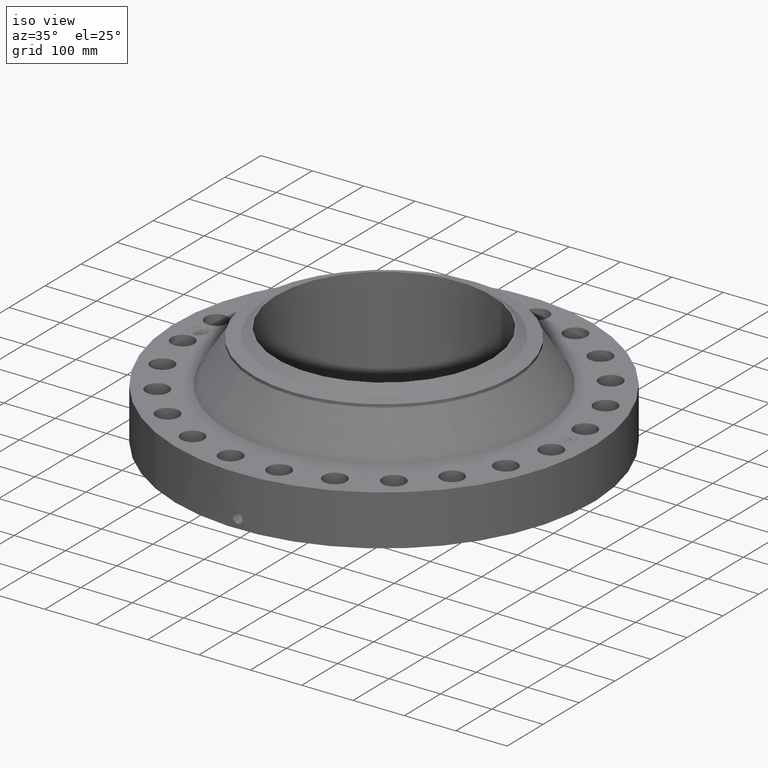
[diagram: clean part render]
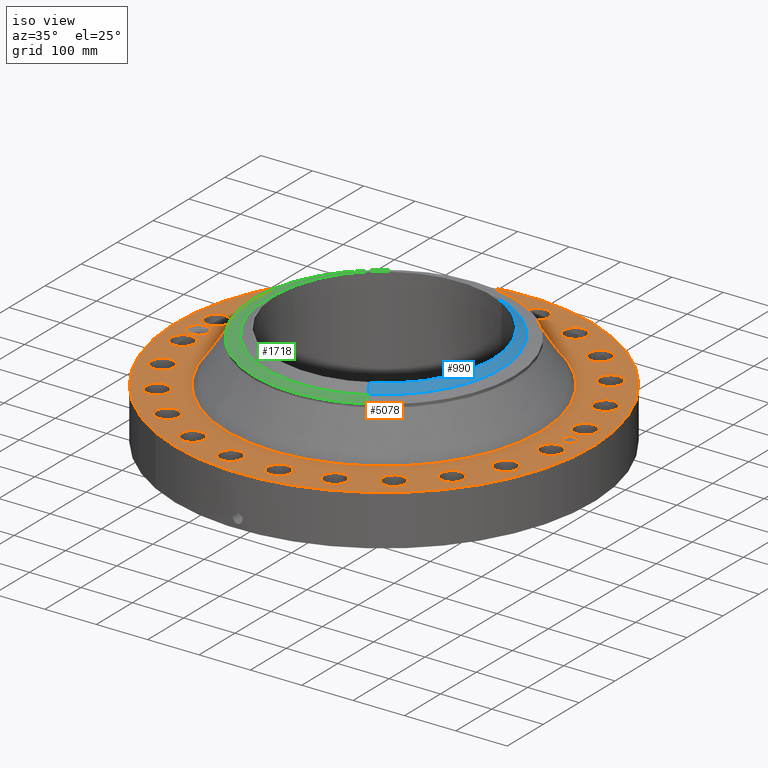
[diagram: same view with three faces highlighted in distinct colors, each labeled with its STEP entity id]
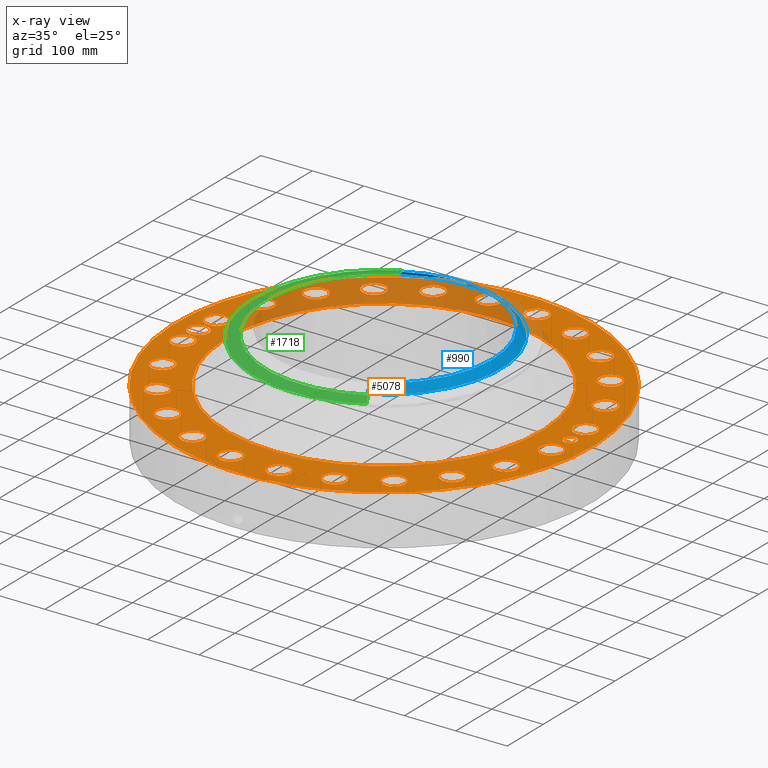
[diagram: x-ray of the same camera — body ghosted, the three highlighted faces saturated]
A machine part, iso view with three faces highlighted in distinct colors.
The next image is the same camera in x-ray (body ghosted, the three faces saturated) — at least one of them is partly hidden behind the body in this view.
Their STEP definitions:

[orange] entity #5078 — the highlighted planar face has unit normal (0, 0, -1).
#3574=AXIS2_PLACEMENT_3D('Circle Axis2P3D',#3572,#3573,$) ;
#3600=AXIS2_PLACEMENT_3D('Circle Axis2P3D',#3598,#3599,$) ;
#4546=AXIS2_PLACEMENT_3D('Plane Axis2P3D',#4543,#4544,#4545) ;
#4550=AXIS2_PLACEMENT_3D('Circle Axis2P3D',#4548,#4549,$) ;
#4559=AXIS2_PLACEMENT_3D('Circle Axis2P3D',#4557,#4558,$) ;
#4608=AXIS2_PLACEMENT_3D('Circle Axis2P3D',#4606,#4607,$) ;
#4615=AXIS2_PLACEMENT_3D('Circle Axis2P3D',#4613,#4614,$) ;
#4626=AXIS2_PLACEMENT_3D('Circle Axis2P3D',#4624,#4625,$) ;
#4635=AXIS2_PLACEMENT_3D('Circle Axis2P3D',#4633,#4634,$) ;
#4648=AXIS2_PLACEMENT_3D('Circle Axis2P3D',#4646,#4647,$) ;
#4657=AXIS2_PLACEMENT_3D('Circle Axis2P3D',#4655,#4656,$) ;
#4666=AXIS2_PLACEMENT_3D('Circle Axis2P3D',#4664,#4665,$) ;
#4675=AXIS2_PLACEMENT_3D('Circle Axis2P3D',#4673,#4674,$) ;
#4684=AXIS2_PLACEMENT_3D('Circle Axis2P3D',#4682,#4683,$) ;
#4693=AXIS2_PLACEMENT_3D('Circle Axis2P3D',#4691,#4692,$) ;
#4702=AXIS2_PLACEMENT_3D('Circle Axis2P3D',#4700,#4701,$) ;
#4711=AXIS2_PLACEMENT_3D('Circle Axis2P3D',#4709,#4710,$) ;
#4720=AXIS2_PLACEMENT_3D('Circle Axis2P3D',#4718,#4719,$) ;
#4729=AXIS2_PLACEMENT_3D('Circle Axis2P3D',#4727,#4728,$) ;
#4738=AXIS2_PLACEMENT_3D('Circle Axis2P3D',#4736,#4737,$) ;
#4747=AXIS2_PLACEMENT_3D('Circle Axis2P3D',#4745,#4746,$) ;
#4756=AXIS2_PLACEMENT_3D('Circle Axis2P3D',#4754,#4755,$) ;
#4765=AXIS2_PLACEMENT_3D('Circle Axis2P3D',#4763,#4764,$) ;
#4774=AXIS2_PLACEMENT_3D('Circle Axis2P3D',#4772,#4773,$) ;
#4783=AXIS2_PLACEMENT_3D('Circle Axis2P3D',#4781,#4782,$) ;
#4792=AXIS2_PLACEMENT_3D('Circle Axis2P3D',#4790,#4791,$) ;
#4801=AXIS2_PLACEMENT_3D('Circle Axis2P3D',#4799,#4800,$) ;
#4810=AXIS2_PLACEMENT_3D('Circle Axis2P3D',#4808,#4809,$) ;
#4819=AXIS2_PLACEMENT_3D('Circle Axis2P3D',#4817,#4818,$) ;
#4828=AXIS2_PLACEMENT_3D('Circle Axis2P3D',#4826,#4827,$) ;
#4837=AXIS2_PLACEMENT_3D('Circle Axis2P3D',#4835,#4836,$) ;
#4846=AXIS2_PLACEMENT_3D('Circle Axis2P3D',#4844,#4845,$) ;
#4855=AXIS2_PLACEMENT_3D('Circle Axis2P3D',#4853,#4854,$) ;
#4864=AXIS2_PLACEMENT_3D('Circle Axis2P3D',#4862,#4863,$) ;
#4873=AXIS2_PLACEMENT_3D('Circle Axis2P3D',#4871,#4872,$) ;
#4882=AXIS2_PLACEMENT_3D('Circle Axis2P3D',#4880,#4881,$) ;
#4891=AXIS2_PLACEMENT_3D('Circle Axis2P3D',#4889,#4890,$) ;
#4900=AXIS2_PLACEMENT_3D('Circle Axis2P3D',#4898,#4899,$) ;
#4909=AXIS2_PLACEMENT_3D('Circle Axis2P3D',#4907,#4908,$) ;
#4918=AXIS2_PLACEMENT_3D('Circle Axis2P3D',#4916,#4917,$) ;
#4927=AXIS2_PLACEMENT_3D('Circle Axis2P3D',#4925,#4926,$) ;
#4936=AXIS2_PLACEMENT_3D('Circle Axis2P3D',#4934,#4935,$) ;
#4945=AXIS2_PLACEMENT_3D('Circle Axis2P3D',#4943,#4944,$) ;
#4954=AXIS2_PLACEMENT_3D('Circle Axis2P3D',#4952,#4953,$) ;
#4963=AXIS2_PLACEMENT_3D('Circle Axis2P3D',#4961,#4962,$) ;
#4972=AXIS2_PLACEMENT_3D('Circle Axis2P3D',#4970,#4971,$) ;
#4981=AXIS2_PLACEMENT_3D('Circle Axis2P3D',#4979,#4980,$) ;
#4990=AXIS2_PLACEMENT_3D('Circle Axis2P3D',#4988,#4989,$) ;
#4999=AXIS2_PLACEMENT_3D('Circle Axis2P3D',#4997,#4998,$) ;
#5008=AXIS2_PLACEMENT_3D('Circle Axis2P3D',#5006,#5007,$) ;
#5017=AXIS2_PLACEMENT_3D('Circle Axis2P3D',#5015,#5016,$) ;
#5026=AXIS2_PLACEMENT_3D('Circle Axis2P3D',#5024,#5025,$) ;
#5035=AXIS2_PLACEMENT_3D('Circle Axis2P3D',#5033,#5034,$) ;
#5044=AXIS2_PLACEMENT_3D('Circle Axis2P3D',#5042,#5043,$) ;
#5053=AXIS2_PLACEMENT_3D('Circle Axis2P3D',#5051,#5052,$) ;
#5062=AXIS2_PLACEMENT_3D('Circle Axis2P3D',#5060,#5061,$) ;
#5071=AXIS2_PLACEMENT_3D('Circle Axis2P3D',#5069,#5070,$) ;
#3572=CARTESIAN_POINT('Axis2P3D Location',(0.,0.,3.87500000002)) ;
#3576=CARTESIAN_POINT('Vertex',(-5.78430904975,-10.5881066942,3.87500000002)) ;
#3578=CARTESIAN_POINT('Vertex',(5.78430904975,10.5881066942,3.87500000002)) ;
#3598=CARTESIAN_POINT('Axis2P3D Location',(0.,0.,3.87500000002)) ;
#4543=CARTESIAN_POINT('Axis2P3D Location',(0.,16.0000000001,3.87500000002)) ;
#4548=CARTESIAN_POINT('Axis2P3D Location',(0.,0.,3.87500000002)) ;
#4552=CARTESIAN_POINT('Vertex',(7.6708086177,14.0413209903,3.87500000002)) ;
#4554=CARTESIAN_POINT('Vertex',(-7.6708086177,-14.0413209903,3.87500000002)) ;
#4557=CARTESIAN_POINT('Axis2P3D Location',(0.,0.,3.87500000002)) ;
#4567=CARTESIAN_POINT('Control Point',(-13.4375000001,2.23792987641E-015,3.87500000002)) ;
#4568=CARTESIAN_POINT('Control Point',(-13.4405027016,0.0700643683615,3.87500000002)) ;
#4569=CARTESIAN_POINT('Control Point',(-13.4510651153,0.13965391454,3.87500000002)) ;
#4570=CARTESIAN_POINT('Control Point',(-13.4691221786,0.207669660336,3.87500000002)) ;
#4571=CARTESIAN_POINT('Control Point',(-13.5195963338,0.338375335254,3.87500000002)) ;
#4572=CARTESIAN_POINT('Control Point',(-13.5966936115,0.454596599181,3.87500000002)) ;
#4573=CARTESIAN_POINT('Control Point',(-13.6413728251,0.508119578207,3.87500000002)) ;
#4574=CARTESIAN_POINT('Control Point',(-13.7248059394,0.58823429566,3.87500000002)) ;
#4575=CARTESIAN_POINT('Control Point',(-13.8207316273,0.651398130219,3.87500000002)) ;
#4576=CARTESIAN_POINT('Control Point',(-13.8608246243,0.67374971681,3.87500000002)) ;
#4577=CARTESIAN_POINT('Control Point',(-13.9334161552,0.707459384861,3.87500000002)) ;
#4578=CARTESIAN_POINT('Control Point',(-14.0094371073,0.731460625834,3.87500000002)) ;
#4579=CARTESIAN_POINT('Control Point',(-14.0424615839,0.739905641491,3.87500000002)) ;
#4580=CARTESIAN_POINT('Control Point',(-14.0758392496,0.746494342051,3.87500000002)) ;
#4581=CARTESIAN_POINT('Control Point',(-14.1094305418,0.751211215249,3.87500000002)) ;
#4582=CARTESIAN_POINT('Vertex',(-13.4375000001,2.23792987641E-015,3.87500000002)) ;
#4584=CARTESIAN_POINT('Vertex',(-14.1094305418,0.751211215249,3.87500000002)) ;
#4588=CARTESIAN_POINT('Control Point',(-13.4375000001,0.,3.87500000002)) ;
#4589=CARTESIAN_POINT('Control Point',(-13.4405034545,-0.0700819350214,3.87500000002)) ;
#4590=CARTESIAN_POINT('Control Point',(-13.4510703947,-0.13968880805,3.87500000002)) ;
#4591=CARTESIAN_POINT('Control Point',(-13.4691262965,-0.207700111338,3.87500000002)) ;
#4592=CARTESIAN_POINT('Control Point',(-13.5196047463,-0.338419203554,3.87500000002)) ;
#4593=CARTESIAN_POINT('Control Point',(-13.5966628943,-0.454573282945,3.87500000002)) ;
#4594=CARTESIAN_POINT('Control Point',(-13.6413276953,-0.508069876009,3.87500000002)) ;
#4595=CARTESIAN_POINT('Control Point',(-13.7414181416,-0.604187165244,3.87500000002)) ;
#4596=CARTESIAN_POINT('Control Point',(-13.8594367332,-0.675897173911,3.87500000002)) ;
#4597=CARTESIAN_POINT('Control Point',(-13.9220592222,-0.705005526455,3.87500000002)) ;
#4598=CARTESIAN_POINT('Control Point',(-13.9980972356,-0.730534580138,3.87500000002)) ;
#4599=CARTESIAN_POINT('Control Point',(-14.0761238725,-0.745926237665,3.87500000002)) ;
#4600=CARTESIAN_POINT('Control Point',(-14.0873046717,-0.747916896349,3.87500000002)) ;
#4601=CARTESIAN_POINT('Control Point',(-14.0985158565,-0.749698820346,3.87500000002)) ;
#4602=CARTESIAN_POINT('Control Point',(-14.1097522696,-0.751271346862,3.87500000002)) ;
#4603=CARTESIAN_POINT('Vertex',(-14.1097522696,-0.751271346862,3.87500000002)) ;
#4606=CARTESIAN_POINT('Axis2P3D Location',(-14.2500000001,4.47585975282E-015,3.87500000002)) ;
#4610=CARTESIAN_POINT('Vertex',(-14.920692473,0.36640096788,3.87500000002)) ;
#4613=CARTESIAN_POINT('Axis2P3D Location',(-14.2500000001,4.47585975282E-015,3.87500000002)) ;
#4624=CARTESIAN_POINT('Axis2P3D Location',(14.1280892746,-1.85999823914,3.87500000002)) ;
#4628=CARTESIAN_POINT('Vertex',(13.360204533,-1.44050089286,3.87500000002)) ;
#4630=CARTESIAN_POINT('Vertex',(14.8959740163,-2.27949558542,3.87500000002)) ;
#4633=CARTESIAN_POINT('Axis2P3D Location',(14.1280892746,-1.85999823914,3.87500000002)) ;
#4646=CARTESIAN_POINT('Axis2P3D Location',(13.1652833383,-5.45323891122,3.87500000002)) ;
#4650=CARTESIAN_POINT('Vertex',(13.7984291393,-6.05718542764,3.87500000002)) ;
#4652=CARTESIAN_POINT('Vertex',(12.5321375373,-4.84929239481,3.87500000002)) ;
#4655=CARTESIAN_POINT('Axis2P3D Location',(13.1652833383,-5.45323891122,3.87500000002)) ;
#4664=CARTESIAN_POINT('Axis2P3D Location',(11.3052850992,-8.67485036341,3.87500000002)) ;
#4668=CARTESIAN_POINT('Vertex',(11.7605441195,-9.42208809294,3.87500000002)) ;
#4670=CARTESIAN_POINT('Vertex',(10.8500260789,-7.92761263388,3.87500000002)) ;
#4673=CARTESIAN_POINT('Axis2P3D Location',(11.3052850992,-8.67485036341,3.87500000002)) ;
#4682=CARTESIAN_POINT('Axis2P3D Location',(8.67485036341,-11.3052850992,3.87500000002)) ;
#4686=CARTESIAN_POINT('Vertex',(8.92119745316,-12.1448910254,3.87500000002)) ;
#4688=CARTESIAN_POINT('Vertex',(8.42850327366,-10.465679173,3.87500000002)) ;
#4691=CARTESIAN_POINT('Axis2P3D Location',(8.67485036341,-11.3052850992,3.87500000002)) ;
#4700=CARTESIAN_POINT('Axis2P3D Location',(5.45323891122,-13.1652833383,3.87500000002)) ;
#4704=CARTESIAN_POINT('Vertex',(5.47388592335,-14.0400397049,3.87500000002)) ;
#4706=CARTESIAN_POINT('Vertex',(5.43259189909,-12.2905269717,3.87500000002)) ;
#4709=CARTESIAN_POINT('Axis2P3D Location',(5.45323891122,-13.1652833383,3.87500000002)) ;
#4718=CARTESIAN_POINT('Axis2P3D Location',(1.85999823914,-14.1280892746,3.87500000002)) ;
#4722=CARTESIAN_POINT('Vertex',(1.6535381139,-14.9783828808,3.87500000002)) ;
#4724=CARTESIAN_POINT('Vertex',(2.06645836439,-13.2777956685,3.87500000002)) ;
#4727=CARTESIAN_POINT('Axis2P3D Location',(1.85999823914,-14.1280892746,3.87500000002)) ;
#4736=CARTESIAN_POINT('Axis2P3D Location',(-1.85999823914,-14.1280892746,3.87500000002)) ;
#4740=CARTESIAN_POINT('Vertex',(-2.27949558542,-14.8959740163,3.87500000002)) ;
#4742=CARTESIAN_POINT('Vertex',(-1.44050089286,-13.360204533,3.87500000002)) ;
#4745=CARTESIAN_POINT('Axis2P3D Location',(-1.85999823914,-14.1280892746,3.87500000002)) ;
#4754=CARTESIAN_POINT('Axis2P3D Location',(-5.45323891122,-13.1652833383,3.87500000002)) ;
#4758=CARTESIAN_POINT('Vertex',(-6.05718542764,-13.7984291393,3.87500000002)) ;
#4760=CARTESIAN_POINT('Vertex',(-4.84929239481,-12.5321375373,3.87500000002)) ;
#4763=CARTESIAN_POINT('Axis2P3D Location',(-5.45323891122,-13.1652833383,3.87500000002)) ;
#4772=CARTESIAN_POINT('Axis2P3D Location',(-8.67485036341,-11.3052850992,3.87500000002)) ;
#4776=CARTESIAN_POINT('Vertex',(-9.42208809294,-11.7605441195,3.87500000002)) ;
#4778=CARTESIAN_POINT('Vertex',(-7.92761263388,-10.8500260789,3.87500000002)) ;
#4781=CARTESIAN_POINT('Axis2P3D Location',(-8.67485036341,-11.3052850992,3.87500000002)) ;
#4790=CARTESIAN_POINT('Axis2P3D Location',(-11.3052850992,-8.67485036341,3.87500000002)) ;
#4794=CARTESIAN_POINT('Vertex',(-12.1448910254,-8.92119745316,3.87500000002)) ;
#4796=CARTESIAN_POINT('Vertex',(-10.465679173,-8.42850327366,3.87500000002)) ;
#4799=CARTESIAN_POINT('Axis2P3D Location',(-11.3052850992,-8.67485036341,3.87500000002)) ;
#4808=CARTESIAN_POINT('Axis2P3D Location',(-13.1652833383,-5.45323891122,3.87500000002)) ;
#4812=CARTESIAN_POINT('Vertex',(-14.0400397049,-5.47388592335,3.87500000002)) ;
#4814=CARTESIAN_POINT('Vertex',(-12.2905269717,-5.43259189909,3.87500000002)) ;
#4817=CARTESIAN_POINT('Axis2P3D Location',(-13.1652833383,-5.45323891122,3.87500000002)) ;
#4826=CARTESIAN_POINT('Axis2P3D Location',(-14.1280892746,-1.85999823914,3.87500000002)) ;
#4830=CARTESIAN_POINT('Vertex',(-14.9783828808,-1.6535381139,3.87500000002)) ;
#4832=CARTESIAN_POINT('Vertex',(-13.2777956685,-2.06645836439,3.87500000002)) ;
#4835=CARTESIAN_POINT('Axis2P3D Location',(-14.1280892746,-1.85999823914,3.87500000002)) ;
#4844=CARTESIAN_POINT('Axis2P3D Location',(-14.1280892746,1.85999823914,3.87500000002)) ;
#4848=CARTESIAN_POINT('Vertex',(-14.8959740163,2.27949558542,3.87500000002)) ;
#4850=CARTESIAN_POINT('Vertex',(-13.360204533,1.44050089286,3.87500000002)) ;
#4853=CARTESIAN_POINT('Axis2P3D Location',(-14.1280892746,1.85999823914,3.87500000002)) ;
#4862=CARTESIAN_POINT('Axis2P3D Location',(-13.1652833383,5.45323891122,3.87500000002)) ;
#4866=CARTESIAN_POINT('Vertex',(-13.7984291393,6.05718542764,3.87500000002)) ;
#4868=CARTESIAN_POINT('Vertex',(-12.5321375373,4.84929239481,3.87500000002)) ;
#4871=CARTESIAN_POINT('Axis2P3D Location',(-13.1652833383,5.45323891122,3.87500000002)) ;
#4880=CARTESIAN_POINT('Axis2P3D Location',(-11.3052850992,8.67485036341,3.87500000002)) ;
#4884=CARTESIAN_POINT('Vertex',(-11.7605441195,9.42208809294,3.87500000002)) ;
#4886=CARTESIAN_POINT('Vertex',(-10.8500260789,7.92761263388,3.87500000002)) ;
#4889=CARTESIAN_POINT('Axis2P3D Location',(-11.3052850992,8.67485036341,3.87500000002)) ;
#4898=CARTESIAN_POINT('Axis2P3D Location',(-8.67485036341,11.3052850992,3.87500000002)) ;
#4902=CARTESIAN_POINT('Vertex',(-8.92119745316,12.1448910254,3.87500000002)) ;
#4904=CARTESIAN_POINT('Vertex',(-8.42850327366,10.465679173,3.87500000002)) ;
#4907=CARTESIAN_POINT('Axis2P3D Location',(-8.67485036341,11.3052850992,3.87500000002)) ;
#4916=CARTESIAN_POINT('Axis2P3D Location',(-5.45323891122,13.1652833383,3.87500000002)) ;
#4920=CARTESIAN_POINT('Vertex',(-5.47388592335,14.0400397049,3.87500000002)) ;
#4922=CARTESIAN_POINT('Vertex',(-5.43259189909,12.2905269717,3.87500000002)) ;
#4925=CARTESIAN_POINT('Axis2P3D Location',(-5.45323891122,13.1652833383,3.87500000002)) ;
#4934=CARTESIAN_POINT('Axis2P3D Location',(-1.85999823914,14.1280892746,3.87500000002)) ;
#4938=CARTESIAN_POINT('Vertex',(-1.6535381139,14.9783828808,3.87500000002)) ;
#4940=CARTESIAN_POINT('Vertex',(-2.06645836439,13.2777956685,3.87500000002)) ;
#4943=CARTESIAN_POINT('Axis2P3D Location',(-1.85999823914,14.1280892746,3.87500000002)) ;
#4952=CARTESIAN_POINT('Axis2P3D Location',(1.85999823914,14.1280892746,3.87500000002)) ;
#4956=CARTESIAN_POINT('Vertex',(2.27949558542,14.8959740163,3.87500000002)) ;
#4958=CARTESIAN_POINT('Vertex',(1.44050089286,13.360204533,3.87500000002)) ;
#4961=CARTESIAN_POINT('Axis2P3D Location',(1.85999823914,14.1280892746,3.87500000002)) ;
#4970=CARTESIAN_POINT('Axis2P3D Location',(5.45323891122,13.1652833383,3.87500000002)) ;
#4974=CARTESIAN_POINT('Vertex',(6.05718542764,13.7984291393,3.87500000002)) ;
#4976=CARTESIAN_POINT('Vertex',(4.84929239481,12.5321375373,3.87500000002)) ;
#4979=CARTESIAN_POINT('Axis2P3D Location',(5.45323891122,13.1652833383,3.87500000002)) ;
#4988=CARTESIAN_POINT('Axis2P3D Location',(8.67485036341,11.3052850992,3.87500000002)) ;
#4992=CARTESIAN_POINT('Vertex',(9.42208809294,11.7605441195,3.87500000002)) ;
#4994=CARTESIAN_POINT('Vertex',(7.92761263388,10.8500260789,3.87500000002)) ;
#4997=CARTESIAN_POINT('Axis2P3D Location',(8.67485036341,11.3052850992,3.87500000002)) ;
#5006=CARTESIAN_POINT('Axis2P3D Location',(11.3052850992,8.67485036341,3.87500000002)) ;
#5010=CARTESIAN_POINT('Vertex',(12.1448910254,8.92119745316,3.87500000002)) ;
#5012=CARTESIAN_POINT('Vertex',(10.465679173,8.42850327366,3.87500000002)) ;
#5015=CARTESIAN_POINT('Axis2P3D Location',(11.3052850992,8.67485036341,3.87500000002)) ;
#5024=CARTESIAN_POINT('Axis2P3D Location',(13.1652833383,5.45323891122,3.87500000002)) ;
#5028=CARTESIAN_POINT('Vertex',(14.0400397049,5.47388592335,3.87500000002)) ;
#5030=CARTESIAN_POINT('Vertex',(12.2905269717,5.43259189909,3.87500000002)) ;
#5033=CARTESIAN_POINT('Axis2P3D Location',(13.1652833383,5.45323891122,3.87500000002)) ;
#5042=CARTESIAN_POINT('Axis2P3D Location',(14.1280892746,1.85999823914,3.87500000002)) ;
#5046=CARTESIAN_POINT('Vertex',(14.9783828808,1.6535381139,3.87500000002)) ;
#5048=CARTESIAN_POINT('Vertex',(13.2777956685,2.06645836439,3.87500000002)) ;
#5051=CARTESIAN_POINT('Axis2P3D Location',(14.1280892746,1.85999823914,3.87500000002)) ;
#5060=CARTESIAN_POINT('Axis2P3D Location',(14.2500000001,-1.27562002955E-013,3.87500000002)) ;
#5064=CARTESIAN_POINT('Vertex',(14.2500000001,0.499999995002,3.87500000002)) ;
#5066=CARTESIAN_POINT('Vertex',(14.2500000001,-0.499999995002,3.87500000002)) ;
#5069=CARTESIAN_POINT('Axis2P3D Location',(14.2500000001,-1.27562002955E-013,3.87500000002)) ;
#3573=DIRECTION('Axis2P3D Direction',(0.,0.,-0.0393700787402)) ;
#3599=DIRECTION('Axis2P3D Direction',(0.,0.,-0.0393700787402)) ;
#4544=DIRECTION('Axis2P3D Direction',(0.,0.,-0.0393700787402)) ;
#4545=DIRECTION('Axis2P3D XDirection',(0.0393700787402,0.,0.)) ;
#4549=DIRECTION('Axis2P3D Direction',(0.,0.,-0.0393700787402)) ;
#4558=DIRECTION('Axis2P3D Direction',(0.,0.,-0.0393700787402)) ;
#4607=DIRECTION('Axis2P3D Direction',(0.,0.,-0.0393700787402)) ;
#4614=DIRECTION('Axis2P3D Direction',(0.,0.,-0.0393700787402)) ;
#4625=DIRECTION('Axis2P3D Direction',(0.,0.,-0.0393700787402)) ;
#4634=DIRECTION('Axis2P3D Direction',(0.,0.,-0.0393700787402)) ;
#4647=DIRECTION('Axis2P3D Direction',(0.,0.,-0.0393700787402)) ;
#4656=DIRECTION('Axis2P3D Direction',(0.,0.,-0.0393700787402)) ;
#4665=DIRECTION('Axis2P3D Direction',(0.,0.,-0.0393700787402)) ;
#4674=DIRECTION('Axis2P3D Direction',(0.,0.,-0.0393700787402)) ;
#4683=DIRECTION('Axis2P3D Direction',(0.,0.,-0.0393700787402)) ;
#4692=DIRECTION('Axis2P3D Direction',(0.,0.,-0.0393700787402)) ;
#4701=DIRECTION('Axis2P3D Direction',(0.,0.,-0.0393700787402)) ;
#4710=DIRECTION('Axis2P3D Direction',(0.,0.,-0.0393700787402)) ;
#4719=DIRECTION('Axis2P3D Direction',(0.,0.,-0.0393700787402)) ;
#4728=DIRECTION('Axis2P3D Direction',(0.,0.,-0.0393700787402)) ;
#4737=DIRECTION('Axis2P3D Direction',(0.,0.,-0.0393700787402)) ;
#4746=DIRECTION('Axis2P3D Direction',(0.,0.,-0.0393700787402)) ;
#4755=DIRECTION('Axis2P3D Direction',(0.,0.,-0.0393700787402)) ;
#4764=DIRECTION('Axis2P3D Direction',(0.,0.,-0.0393700787402)) ;
#4773=DIRECTION('Axis2P3D Direction',(0.,0.,-0.0393700787402)) ;
#4782=DIRECTION('Axis2P3D Direction',(0.,0.,-0.0393700787402)) ;
#4791=DIRECTION('Axis2P3D Direction',(0.,0.,-0.0393700787402)) ;
#4800=DIRECTION('Axis2P3D Direction',(0.,0.,-0.0393700787402)) ;
#4809=DIRECTION('Axis2P3D Direction',(0.,0.,-0.0393700787402)) ;
#4818=DIRECTION('Axis2P3D Direction',(0.,0.,-0.0393700787402)) ;
#4827=DIRECTION('Axis2P3D Direction',(0.,0.,-0.0393700787402)) ;
#4836=DIRECTION('Axis2P3D Direction',(0.,0.,-0.0393700787402)) ;
#4845=DIRECTION('Axis2P3D Direction',(0.,0.,-0.0393700787402)) ;
#4854=DIRECTION('Axis2P3D Direction',(0.,0.,-0.0393700787402)) ;
#4863=DIRECTION('Axis2P3D Direction',(0.,0.,-0.0393700787402)) ;
#4872=DIRECTION('Axis2P3D Direction',(0.,0.,-0.0393700787402)) ;
#4881=DIRECTION('Axis2P3D Direction',(0.,0.,-0.0393700787402)) ;
#4890=DIRECTION('Axis2P3D Direction',(0.,0.,-0.0393700787402)) ;
#4899=DIRECTION('Axis2P3D Direction',(0.,0.,-0.0393700787402)) ;
#4908=DIRECTION('Axis2P3D Direction',(0.,0.,-0.0393700787402)) ;
#4917=DIRECTION('Axis2P3D Direction',(0.,0.,-0.0393700787402)) ;
#4926=DIRECTION('Axis2P3D Direction',(0.,0.,-0.0393700787402)) ;
#4935=DIRECTION('Axis2P3D Direction',(0.,0.,-0.0393700787402)) ;
#4944=DIRECTION('Axis2P3D Direction',(0.,0.,-0.0393700787402)) ;
#4953=DIRECTION('Axis2P3D Direction',(0.,0.,-0.0393700787402)) ;
#4962=DIRECTION('Axis2P3D Direction',(0.,0.,-0.0393700787402)) ;
#4971=DIRECTION('Axis2P3D Direction',(0.,0.,-0.0393700787402)) ;
#4980=DIRECTION('Axis2P3D Direction',(0.,0.,-0.0393700787402)) ;
#4989=DIRECTION('Axis2P3D Direction',(0.,0.,-0.0393700787402)) ;
#4998=DIRECTION('Axis2P3D Direction',(0.,0.,-0.0393700787402)) ;
#5007=DIRECTION('Axis2P3D Direction',(0.,0.,-0.0393700787402)) ;
#5016=DIRECTION('Axis2P3D Direction',(0.,0.,-0.0393700787402)) ;
#5025=DIRECTION('Axis2P3D Direction',(0.,0.,-0.0393700787402)) ;
#5034=DIRECTION('Axis2P3D Direction',(0.,0.,-0.0393700787402)) ;
#5043=DIRECTION('Axis2P3D Direction',(0.,0.,-0.0393700787402)) ;
#5052=DIRECTION('Axis2P3D Direction',(0.,0.,-0.0393700787402)) ;
#5061=DIRECTION('Axis2P3D Direction',(0.,0.,-0.0393700787402)) ;
#5070=DIRECTION('Axis2P3D Direction',(0.,0.,-0.0393700787402)) ;
#4563=ORIENTED_EDGE('',*,*,#4556,.F.) ;
#4564=ORIENTED_EDGE('',*,*,#4561,.F.) ;
#4619=ORIENTED_EDGE('',*,*,#4586,.F.) ;
#4620=ORIENTED_EDGE('',*,*,#4605,.T.) ;
#4621=ORIENTED_EDGE('',*,*,#4612,.T.) ;
#4622=ORIENTED_EDGE('',*,*,#4617,.T.) ;
#4639=ORIENTED_EDGE('',*,*,#4632,.T.) ;
#4640=ORIENTED_EDGE('',*,*,#4637,.T.) ;
#4643=ORIENTED_EDGE('',*,*,#3580,.T.) ;
#4644=ORIENTED_EDGE('',*,*,#3602,.T.) ;
#4661=ORIENTED_EDGE('',*,*,#4654,.T.) ;
#4662=ORIENTED_EDGE('',*,*,#4659,.T.) ;
#4679=ORIENTED_EDGE('',*,*,#4672,.T.) ;
#4680=ORIENTED_EDGE('',*,*,#4677,.T.) ;
#4697=ORIENTED_EDGE('',*,*,#4690,.T.) ;
#4698=ORIENTED_EDGE('',*,*,#4695,.T.) ;
#4715=ORIENTED_EDGE('',*,*,#4708,.T.) ;
#4716=ORIENTED_EDGE('',*,*,#4713,.T.) ;
#4733=ORIENTED_EDGE('',*,*,#4726,.T.) ;
#4734=ORIENTED_EDGE('',*,*,#4731,.T.) ;
#4751=ORIENTED_EDGE('',*,*,#4744,.T.) ;
#4752=ORIENTED_EDGE('',*,*,#4749,.T.) ;
#4769=ORIENTED_EDGE('',*,*,#4762,.T.) ;
#4770=ORIENTED_EDGE('',*,*,#4767,.T.) ;
#4787=ORIENTED_EDGE('',*,*,#4780,.T.) ;
#4788=ORIENTED_EDGE('',*,*,#4785,.T.) ;
#4805=ORIENTED_EDGE('',*,*,#4798,.T.) ;
#4806=ORIENTED_EDGE('',*,*,#4803,.T.) ;
#4823=ORIENTED_EDGE('',*,*,#4816,.T.) ;
#4824=ORIENTED_EDGE('',*,*,#4821,.T.) ;
#4841=ORIENTED_EDGE('',*,*,#4834,.T.) ;
#4842=ORIENTED_EDGE('',*,*,#4839,.T.) ;
#4859=ORIENTED_EDGE('',*,*,#4852,.T.) ;
#4860=ORIENTED_EDGE('',*,*,#4857,.T.) ;
#4877=ORIENTED_EDGE('',*,*,#4870,.T.) ;
#4878=ORIENTED_EDGE('',*,*,#4875,.T.) ;
#4895=ORIENTED_EDGE('',*,*,#4888,.T.) ;
#4896=ORIENTED_EDGE('',*,*,#4893,.T.) ;
#4913=ORIENTED_EDGE('',*,*,#4906,.T.) ;
#4914=ORIENTED_EDGE('',*,*,#4911,.T.) ;
#4931=ORIENTED_EDGE('',*,*,#4924,.T.) ;
#4932=ORIENTED_EDGE('',*,*,#4929,.T.) ;
#4949=ORIENTED_EDGE('',*,*,#4942,.T.) ;
#4950=ORIENTED_EDGE('',*,*,#4947,.T.) ;
#4967=ORIENTED_EDGE('',*,*,#4960,.T.) ;
#4968=ORIENTED_EDGE('',*,*,#4965,.T.) ;
#4985=ORIENTED_EDGE('',*,*,#4978,.T.) ;
#4986=ORIENTED_EDGE('',*,*,#4983,.T.) ;
#5003=ORIENTED_EDGE('',*,*,#4996,.T.) ;
#5004=ORIENTED_EDGE('',*,*,#5001,.T.) ;
#5021=ORIENTED_EDGE('',*,*,#5014,.T.) ;
#5022=ORIENTED_EDGE('',*,*,#5019,.T.) ;
#5039=ORIENTED_EDGE('',*,*,#5032,.T.) ;
#5040=ORIENTED_EDGE('',*,*,#5037,.T.) ;
#5057=ORIENTED_EDGE('',*,*,#5050,.T.) ;
#5058=ORIENTED_EDGE('',*,*,#5055,.T.) ;
#5075=ORIENTED_EDGE('',*,*,#5068,.T.) ;
#5076=ORIENTED_EDGE('',*,*,#5073,.T.) ;
#4623=FACE_BOUND('',#4618,.T.) ;
#4641=FACE_BOUND('',#4638,.T.) ;
#4645=FACE_BOUND('',#4642,.T.) ;
#4663=FACE_BOUND('',#4660,.T.) ;
#4681=FACE_BOUND('',#4678,.T.) ;
#4699=FACE_BOUND('',#4696,.T.) ;
#4717=FACE_BOUND('',#4714,.T.) ;
#4735=FACE_BOUND('',#4732,.T.) ;
#4753=FACE_BOUND('',#4750,.T.) ;
#4771=FACE_BOUND('',#4768,.T.) ;
#4789=FACE_BOUND('',#4786,.T.) ;
#4807=FACE_BOUND('',#4804,.T.) ;
#4825=FACE_BOUND('',#4822,.T.) ;
#4843=FACE_BOUND('',#4840,.T.) ;
#4861=FACE_BOUND('',#4858,.T.) ;
#4879=FACE_BOUND('',#4876,.T.) ;
#4897=FACE_BOUND('',#4894,.T.) ;
#4915=FACE_BOUND('',#4912,.T.) ;
#4933=FACE_BOUND('',#4930,.T.) ;
#4951=FACE_BOUND('',#4948,.T.) ;
#4969=FACE_BOUND('',#4966,.T.) ;
#4987=FACE_BOUND('',#4984,.T.) ;
#5005=FACE_BOUND('',#5002,.T.) ;
#5023=FACE_BOUND('',#5020,.T.) ;
#5041=FACE_BOUND('',#5038,.T.) ;
#5059=FACE_BOUND('',#5056,.T.) ;
#5077=FACE_BOUND('',#5074,.T.) ;
#5078=ADVANCED_FACE('PartBody',(#4565,#4623,#4641,#4645,#4663,#4681,#4699,#4717,#4735,#4753,#4771,#4789,#4807,#4825,#4843,#4861,#4879,#4897,#4915,#4933,#4951,#4969,#4987,#5005,#5023,#5041,#5059,#5077),#4547,.F.) ;
#4566=B_SPLINE_CURVE_WITH_KNOTS('',5,(#4567,#4568,#4569,#4570,#4571,#4572,#4573,#4574,#4575,#4576,#4577,#4578,#4579,#4580,#4581),.UNSPECIFIED.,.F.,.U.,(6,3,3,3,6),(0.,12.1950208933,24.3883267324,32.5133216163,38.5899030644),.UNSPECIFIED.) ;
#4587=B_SPLINE_CURVE_WITH_KNOTS('',5,(#4588,#4589,#4590,#4591,#4592,#4593,#4594,#4595,#4596,#4597,#4598,#4599,#4600,#4601,#4602),.UNSPECIFIED.,.F.,.U.,(6,3,3,3,6),(0.,12.1980784501,24.4062834127,36.6208516655,38.656321378),.UNSPECIFIED.) ;
#3575=CIRCLE('generated circle',#3574,12.0650832799) ;
#3601=CIRCLE('generated circle',#3600,12.0650832799) ;
#4551=CIRCLE('generated circle',#4550,16.0000000001) ;
#4560=CIRCLE('generated circle',#4559,16.0000000001) ;
#4609=CIRCLE('generated circle',#4608,0.764250000003) ;
#4616=CIRCLE('generated circle',#4615,0.764250000003) ;
#4627=CIRCLE('generated circle',#4626,0.875000000004) ;
#4636=CIRCLE('generated circle',#4635,0.875000000004) ;
#4649=CIRCLE('generated circle',#4648,0.875000000004) ;
#4658=CIRCLE('generated circle',#4657,0.875000000004) ;
#4667=CIRCLE('generated circle',#4666,0.875000000003) ;
#4676=CIRCLE('generated circle',#4675,0.875000000003) ;
#4685=CIRCLE('generated circle',#4684,0.875000000004) ;
#4694=CIRCLE('generated circle',#4693,0.875000000004) ;
#4703=CIRCLE('generated circle',#4702,0.875000000003) ;
#4712=CIRCLE('generated circle',#4711,0.875000000003) ;
#4721=CIRCLE('generated circle',#4720,0.875000000004) ;
#4730=CIRCLE('generated circle',#4729,0.875000000004) ;
#4739=CIRCLE('generated circle',#4738,0.875000000004) ;
#4748=CIRCLE('generated circle',#4747,0.875000000004) ;
#4757=CIRCLE('generated circle',#4756,0.875000000004) ;
#4766=CIRCLE('generated circle',#4765,0.875000000004) ;
#4775=CIRCLE('generated circle',#4774,0.875000000003) ;
#4784=CIRCLE('generated circle',#4783,0.875000000003) ;
#4793=CIRCLE('generated circle',#4792,0.875000000004) ;
#4802=CIRCLE('generated circle',#4801,0.875000000004) ;
#4811=CIRCLE('generated circle',#4810,0.875000000003) ;
#4820=CIRCLE('generated circle',#4819,0.875000000003) ;
#4829=CIRCLE('generated circle',#4828,0.875000000004) ;
#4838=CIRCLE('generated circle',#4837,0.875000000004) ;
#4847=CIRCLE('generated circle',#4846,0.875000000004) ;
#4856=CIRCLE('generated circle',#4855,0.875000000004) ;
#4865=CIRCLE('generated circle',#4864,0.875000000004) ;
#4874=CIRCLE('generated circle',#4873,0.875000000004) ;
#4883=CIRCLE('generated circle',#4882,0.875000000003) ;
#4892=CIRCLE('generated circle',#4891,0.875000000003) ;
#4901=CIRCLE('generated circle',#4900,0.875000000004) ;
#4910=CIRCLE('generated circle',#4909,0.875000000004) ;
#4919=CIRCLE('generated circle',#4918,0.875000000003) ;
#4928=CIRCLE('generated circle',#4927,0.875000000003) ;
#4937=CIRCLE('generated circle',#4936,0.875000000004) ;
#4946=CIRCLE('generated circle',#4945,0.875000000004) ;
#4955=CIRCLE('generated circle',#4954,0.875000000004) ;
#4964=CIRCLE('generated circle',#4963,0.875000000004) ;
#4973=CIRCLE('generated circle',#4972,0.875000000004) ;
#4982=CIRCLE('generated circle',#4981,0.875000000004) ;
#4991=CIRCLE('generated circle',#4990,0.875000000003) ;
#5000=CIRCLE('generated circle',#4999,0.875000000003) ;
#5009=CIRCLE('generated circle',#5008,0.875000000004) ;
#5018=CIRCLE('generated circle',#5017,0.875000000004) ;
#5027=CIRCLE('generated circle',#5026,0.875000000003) ;
#5036=CIRCLE('generated circle',#5035,0.875000000003) ;
#5045=CIRCLE('generated circle',#5044,0.875000000004) ;
#5054=CIRCLE('generated circle',#5053,0.875000000004) ;
#5063=CIRCLE('generated circle',#5062,0.499999995002) ;
#5072=CIRCLE('generated circle',#5071,0.499999995002) ;
#3580=EDGE_CURVE('',#3577,#3579,#3575,.T.) ;
#3602=EDGE_CURVE('',#3579,#3577,#3601,.T.) ;
#4556=EDGE_CURVE('',#4553,#4555,#4551,.T.) ;
#4561=EDGE_CURVE('',#4555,#4553,#4560,.T.) ;
#4586=EDGE_CURVE('',#4583,#4585,#4566,.T.) ;
#4605=EDGE_CURVE('',#4583,#4604,#4587,.T.) ;
#4612=EDGE_CURVE('',#4604,#4611,#4609,.T.) ;
#4617=EDGE_CURVE('',#4611,#4585,#4616,.T.) ;
#4632=EDGE_CURVE('',#4629,#4631,#4627,.T.) ;
#4637=EDGE_CURVE('',#4631,#4629,#4636,.T.) ;
#4654=EDGE_CURVE('',#4651,#4653,#4649,.T.) ;
#4659=EDGE_CURVE('',#4653,#4651,#4658,.T.) ;
#4672=EDGE_CURVE('',#4669,#4671,#4667,.T.) ;
#4677=EDGE_CURVE('',#4671,#4669,#4676,.T.) ;
#4690=EDGE_CURVE('',#4687,#4689,#4685,.T.) ;
#4695=EDGE_CURVE('',#4689,#4687,#4694,.T.) ;
#4708=EDGE_CURVE('',#4705,#4707,#4703,.T.) ;
#4713=EDGE_CURVE('',#4707,#4705,#4712,.T.) ;
#4726=EDGE_CURVE('',#4723,#4725,#4721,.T.) ;
#4731=EDGE_CURVE('',#4725,#4723,#4730,.T.) ;
#4744=EDGE_CURVE('',#4741,#4743,#4739,.T.) ;
#4749=EDGE_CURVE('',#4743,#4741,#4748,.T.) ;
#4762=EDGE_CURVE('',#4759,#4761,#4757,.T.) ;
#4767=EDGE_CURVE('',#4761,#4759,#4766,.T.) ;
#4780=EDGE_CURVE('',#4777,#4779,#4775,.T.) ;
#4785=EDGE_CURVE('',#4779,#4777,#4784,.T.) ;
#4798=EDGE_CURVE('',#4795,#4797,#4793,.T.) ;
#4803=EDGE_CURVE('',#4797,#4795,#4802,.T.) ;
#4816=EDGE_CURVE('',#4813,#4815,#4811,.T.) ;
#4821=EDGE_CURVE('',#4815,#4813,#4820,.T.) ;
#4834=EDGE_CURVE('',#4831,#4833,#4829,.T.) ;
#4839=EDGE_CURVE('',#4833,#4831,#4838,.T.) ;
#4852=EDGE_CURVE('',#4849,#4851,#4847,.T.) ;
#4857=EDGE_CURVE('',#4851,#4849,#4856,.T.) ;
#4870=EDGE_CURVE('',#4867,#4869,#4865,.T.) ;
#4875=EDGE_CURVE('',#4869,#4867,#4874,.T.) ;
#4888=EDGE_CURVE('',#4885,#4887,#4883,.T.) ;
#4893=EDGE_CURVE('',#4887,#4885,#4892,.T.) ;
#4906=EDGE_CURVE('',#4903,#4905,#4901,.T.) ;
#4911=EDGE_CURVE('',#4905,#4903,#4910,.T.) ;
#4924=EDGE_CURVE('',#4921,#4923,#4919,.T.) ;
#4929=EDGE_CURVE('',#4923,#4921,#4928,.T.) ;
#4942=EDGE_CURVE('',#4939,#4941,#4937,.T.) ;
#4947=EDGE_CURVE('',#4941,#4939,#4946,.T.) ;
#4960=EDGE_CURVE('',#4957,#4959,#4955,.T.) ;
#4965=EDGE_CURVE('',#4959,#4957,#4964,.T.) ;
#4978=EDGE_CURVE('',#4975,#4977,#4973,.T.) ;
#4983=EDGE_CURVE('',#4977,#4975,#4982,.T.) ;
#4996=EDGE_CURVE('',#4993,#4995,#4991,.T.) ;
#5001=EDGE_CURVE('',#4995,#4993,#5000,.T.) ;
#5014=EDGE_CURVE('',#5011,#5013,#5009,.T.) ;
#5019=EDGE_CURVE('',#5013,#5011,#5018,.T.) ;
#5032=EDGE_CURVE('',#5029,#5031,#5027,.T.) ;
#5037=EDGE_CURVE('',#5031,#5029,#5036,.T.) ;
#5050=EDGE_CURVE('',#5047,#5049,#5045,.T.) ;
#5055=EDGE_CURVE('',#5049,#5047,#5054,.T.) ;
#5068=EDGE_CURVE('',#5065,#5067,#5063,.T.) ;
#5073=EDGE_CURVE('',#5067,#5065,#5072,.T.) ;
#4562=EDGE_LOOP('',(#4563,#4564)) ;
#4618=EDGE_LOOP('',(#4619,#4620,#4621,#4622)) ;
#4638=EDGE_LOOP('',(#4639,#4640)) ;
#4642=EDGE_LOOP('',(#4643,#4644)) ;
#4660=EDGE_LOOP('',(#4661,#4662)) ;
#4678=EDGE_LOOP('',(#4679,#4680)) ;
#4696=EDGE_LOOP('',(#4697,#4698)) ;
#4714=EDGE_LOOP('',(#4715,#4716)) ;
#4732=EDGE_LOOP('',(#4733,#4734)) ;
#4750=EDGE_LOOP('',(#4751,#4752)) ;
#4768=EDGE_LOOP('',(#4769,#4770)) ;
#4786=EDGE_LOOP('',(#4787,#4788)) ;
#4804=EDGE_LOOP('',(#4805,#4806)) ;
#4822=EDGE_LOOP('',(#4823,#4824)) ;
#4840=EDGE_LOOP('',(#4841,#4842)) ;
#4858=EDGE_LOOP('',(#4859,#4860)) ;
#4876=EDGE_LOOP('',(#4877,#4878)) ;
#4894=EDGE_LOOP('',(#4895,#4896)) ;
#4912=EDGE_LOOP('',(#4913,#4914)) ;
#4930=EDGE_LOOP('',(#4931,#4932)) ;
#4948=EDGE_LOOP('',(#4949,#4950)) ;
#4966=EDGE_LOOP('',(#4967,#4968)) ;
#4984=EDGE_LOOP('',(#4985,#4986)) ;
#5002=EDGE_LOOP('',(#5003,#5004)) ;
#5020=EDGE_LOOP('',(#5021,#5022)) ;
#5038=EDGE_LOOP('',(#5039,#5040)) ;
#5056=EDGE_LOOP('',(#5057,#5058)) ;
#5074=EDGE_LOOP('',(#5075,#5076)) ;
#4565=FACE_OUTER_BOUND('',#4562,.T.) ;
#4547=PLANE('',#4546) ;
#3577=VERTEX_POINT('',#3576) ;
#3579=VERTEX_POINT('',#3578) ;
#4553=VERTEX_POINT('',#4552) ;
#4555=VERTEX_POINT('',#4554) ;
#4583=VERTEX_POINT('',#4582) ;
#4585=VERTEX_POINT('',#4584) ;
#4604=VERTEX_POINT('',#4603) ;
#4611=VERTEX_POINT('',#4610) ;
#4629=VERTEX_POINT('',#4628) ;
#4631=VERTEX_POINT('',#4630) ;
#4651=VERTEX_POINT('',#4650) ;
#4653=VERTEX_POINT('',#4652) ;
#4669=VERTEX_POINT('',#4668) ;
#4671=VERTEX_POINT('',#4670) ;
#4687=VERTEX_POINT('',#4686) ;
#4689=VERTEX_POINT('',#4688) ;
#4705=VERTEX_POINT('',#4704) ;
#4707=VERTEX_POINT('',#4706) ;
#4723=VERTEX_POINT('',#4722) ;
#4725=VERTEX_POINT('',#4724) ;
#4741=VERTEX_POINT('',#4740) ;
#4743=VERTEX_POINT('',#4742) ;
#4759=VERTEX_POINT('',#4758) ;
#4761=VERTEX_POINT('',#4760) ;
#4777=VERTEX_POINT('',#4776) ;
#4779=VERTEX_POINT('',#4778) ;
#4795=VERTEX_POINT('',#4794) ;
#4797=VERTEX_POINT('',#4796) ;
#4813=VERTEX_POINT('',#4812) ;
#4815=VERTEX_POINT('',#4814) ;
#4831=VERTEX_POINT('',#4830) ;
#4833=VERTEX_POINT('',#4832) ;
#4849=VERTEX_POINT('',#4848) ;
#4851=VERTEX_POINT('',#4850) ;
#4867=VERTEX_POINT('',#4866) ;
#4869=VERTEX_POINT('',#4868) ;
#4885=VERTEX_POINT('',#4884) ;
#4887=VERTEX_POINT('',#4886) ;
#4903=VERTEX_POINT('',#4902) ;
#4905=VERTEX_POINT('',#4904) ;
#4921=VERTEX_POINT('',#4920) ;
#4923=VERTEX_POINT('',#4922) ;
#4939=VERTEX_POINT('',#4938) ;
#4941=VERTEX_POINT('',#4940) ;
#4957=VERTEX_POINT('',#4956) ;
#4959=VERTEX_POINT('',#4958) ;
#4975=VERTEX_POINT('',#4974) ;
#4977=VERTEX_POINT('',#4976) ;
#4993=VERTEX_POINT('',#4992) ;
#4995=VERTEX_POINT('',#4994) ;
#5011=VERTEX_POINT('',#5010) ;
#5013=VERTEX_POINT('',#5012) ;
#5029=VERTEX_POINT('',#5028) ;
#5031=VERTEX_POINT('',#5030) ;
#5047=VERTEX_POINT('',#5046) ;
#5049=VERTEX_POINT('',#5048) ;
#5065=VERTEX_POINT('',#5064) ;
#5067=VERTEX_POINT('',#5066) ;

[blue] entity #990 — the highlighted conical surface has half-angle 52.5 deg.
#515=AXIS2_PLACEMENT_3D('Circle Axis2P3D',#513,#514,$) ;
#951=AXIS2_PLACEMENT_3D('Cone Axis2P3D',#948,#949,#950) ;
#981=AXIS2_PLACEMENT_3D('Circle Axis2P3D',#979,#980,$) ;
#513=CARTESIAN_POINT('Axis2P3D Location',(0.,0.,7.87500000003)) ;
#517=CARTESIAN_POINT('Vertex',(3.99301073591,-7.30915712475,7.87500000003)) ;
#519=CARTESIAN_POINT('Vertex',(-3.99301073591,7.30915712475,7.87500000003)) ;
#948=CARTESIAN_POINT('Axis2P3D Location',(0.,0.,7.87500000003)) ;
#953=CARTESIAN_POINT('Line Origine',(-4.14795203846,7.59277527665,7.6270143726)) ;
#957=CARTESIAN_POINT('Vertex',(-4.30289334101,7.87639342856,7.37902874516)) ;
#964=CARTESIAN_POINT('Vertex',(4.30289334101,-7.87639342856,7.37902874516)) ;
#967=CARTESIAN_POINT('Line Origine',(4.14795203846,-7.59277527665,7.6270143726)) ;
#979=CARTESIAN_POINT('Axis2P3D Location',(0.,0.,7.37902874516)) ;
#514=DIRECTION('Axis2P3D Direction',(0.,0.,-0.0393700787402)) ;
#949=DIRECTION('Axis2P3D Direction',(-0.,-0.,-0.0393700787402)) ;
#950=DIRECTION('Axis2P3D XDirection',(-0.0188750212049,0.0345504945626,0.)) ;
#954=DIRECTION('Vector Direction',(-0.014974561121,0.02741075027,-0.023966985394)) ;
#968=DIRECTION('Vector Direction',(0.014974561121,-0.02741075027,-0.023966985394)) ;
#980=DIRECTION('Axis2P3D Direction',(0.,0.,-0.0393700787402)) ;
#955=VECTOR('Line Direction',#954,0.0393700787402) ;
#969=VECTOR('Line Direction',#968,0.0393700787402) ;
#985=ORIENTED_EDGE('',*,*,#521,.F.) ;
#986=ORIENTED_EDGE('',*,*,#971,.T.) ;
#987=ORIENTED_EDGE('',*,*,#983,.T.) ;
#988=ORIENTED_EDGE('',*,*,#959,.F.) ;
#990=ADVANCED_FACE('PartBody',(#989),#952,.T.) ;
#516=CIRCLE('generated circle',#515,8.32874015751) ;
#982=CIRCLE('generated circle',#981,8.97510248106) ;
#952=CONICAL_SURFACE('Cone',#951,8.32874015751,0.916297857297) ;
#521=EDGE_CURVE('',#518,#520,#516,.F.) ;
#959=EDGE_CURVE('',#520,#958,#956,.T.) ;
#971=EDGE_CURVE('',#518,#965,#970,.T.) ;
#983=EDGE_CURVE('',#965,#958,#982,.F.) ;
#984=EDGE_LOOP('',(#985,#986,#987,#988)) ;
#989=FACE_OUTER_BOUND('',#984,.T.) ;
#956=LINE('Line',#953,#955) ;
#970=LINE('Line',#967,#969) ;
#518=VERTEX_POINT('',#517) ;
#520=VERTEX_POINT('',#519) ;
#958=VERTEX_POINT('',#957) ;
#965=VERTEX_POINT('',#964) ;

[green] entity #1718 — the highlighted conical surface has half-angle 80 deg.
#1328=AXIS2_PLACEMENT_3D('Circle Axis2P3D',#1326,#1327,$) ;
#1683=AXIS2_PLACEMENT_3D('Cone Axis2P3D',#1680,#1681,#1682) ;
#1701=AXIS2_PLACEMENT_3D('Circle Axis2P3D',#1699,#1700,$) ;
#1708=AXIS2_PLACEMENT_3D('Circle Axis2P3D',#1706,#1707,$) ;
#1323=CARTESIAN_POINT('Vertex',(-4.32753165655,7.92149356263,7.35641601925)) ;
#1326=CARTESIAN_POINT('Axis2P3D Location',(0.,0.,7.35641601925)) ;
#1330=CARTESIAN_POINT('Vertex',(4.32753165655,-7.92149356263,7.35641601925)) ;
#1680=CARTESIAN_POINT('Axis2P3D Location',(0.,0.,7.35641601925)) ;
#1685=CARTESIAN_POINT('Line Origine',(4.5608935213,-8.34865959079,7.27058831565)) ;
#1689=CARTESIAN_POINT('Vertex',(4.79425538606,-8.77582561894,7.18476061205)) ;
#1692=CARTESIAN_POINT('Line Origine',(-4.5608935213,8.34865959079,7.27058831565)) ;
#1696=CARTESIAN_POINT('Vertex',(-4.79425538606,8.77582561894,7.18476061205)) ;
#1699=CARTESIAN_POINT('Axis2P3D Location',(0.,0.,7.18476061205)) ;
#1703=CARTESIAN_POINT('Vertex',(-4.79425538606,-8.77582561894,7.18476061205)) ;
#1706=CARTESIAN_POINT('Axis2P3D Location',(0.,0.,7.18476061205)) ;
#1327=DIRECTION('Axis2P3D Direction',(0.,0.,0.0393700787402)) ;
#1681=DIRECTION('Axis2P3D Direction',(-0.,-0.,-0.0393700787402)) ;
#1682=DIRECTION('Axis2P3D XDirection',(-0.0188750212049,0.0345504945626,0.)) ;
#1686=DIRECTION('Vector Direction',(0.0185882672208,-0.0340255949157,-0.00683654242783)) ;
#1693=DIRECTION('Vector Direction',(-0.0185882672208,0.0340255949157,-0.00683654242783)) ;
#1700=DIRECTION('Axis2P3D Direction',(0.,0.,-0.0393700787402)) ;
#1707=DIRECTION('Axis2P3D Direction',(0.,0.,-0.0393700787402)) ;
#1687=VECTOR('Line Direction',#1686,0.0393700787402) ;
#1694=VECTOR('Line Direction',#1693,0.0393700787402) ;
#1712=ORIENTED_EDGE('',*,*,#1691,.F.) ;
#1713=ORIENTED_EDGE('',*,*,#1332,.F.) ;
#1714=ORIENTED_EDGE('',*,*,#1698,.T.) ;
#1715=ORIENTED_EDGE('',*,*,#1705,.T.) ;
#1716=ORIENTED_EDGE('',*,*,#1710,.F.) ;
#1718=ADVANCED_FACE('PartBody',(#1717),#1684,.T.) ;
#1329=CIRCLE('generated circle',#1328,9.02649380996) ;
#1702=CIRCLE('generated circle',#1701,10.) ;
#1709=CIRCLE('generated circle',#1708,10.) ;
#1684=CONICAL_SURFACE('Cone',#1683,9.02649380996,1.3962634016) ;
#1332=EDGE_CURVE('',#1324,#1331,#1329,.T.) ;
#1691=EDGE_CURVE('',#1331,#1690,#1688,.T.) ;
#1698=EDGE_CURVE('',#1324,#1697,#1695,.T.) ;
#1705=EDGE_CURVE('',#1697,#1704,#1702,.F.) ;
#1710=EDGE_CURVE('',#1690,#1704,#1709,.T.) ;
#1711=EDGE_LOOP('',(#1712,#1713,#1714,#1715,#1716)) ;
#1717=FACE_OUTER_BOUND('',#1711,.T.) ;
#1688=LINE('Line',#1685,#1687) ;
#1695=LINE('Line',#1692,#1694) ;
#1324=VERTEX_POINT('',#1323) ;
#1331=VERTEX_POINT('',#1330) ;
#1690=VERTEX_POINT('',#1689) ;
#1697=VERTEX_POINT('',#1696) ;
#1704=VERTEX_POINT('',#1703) ;